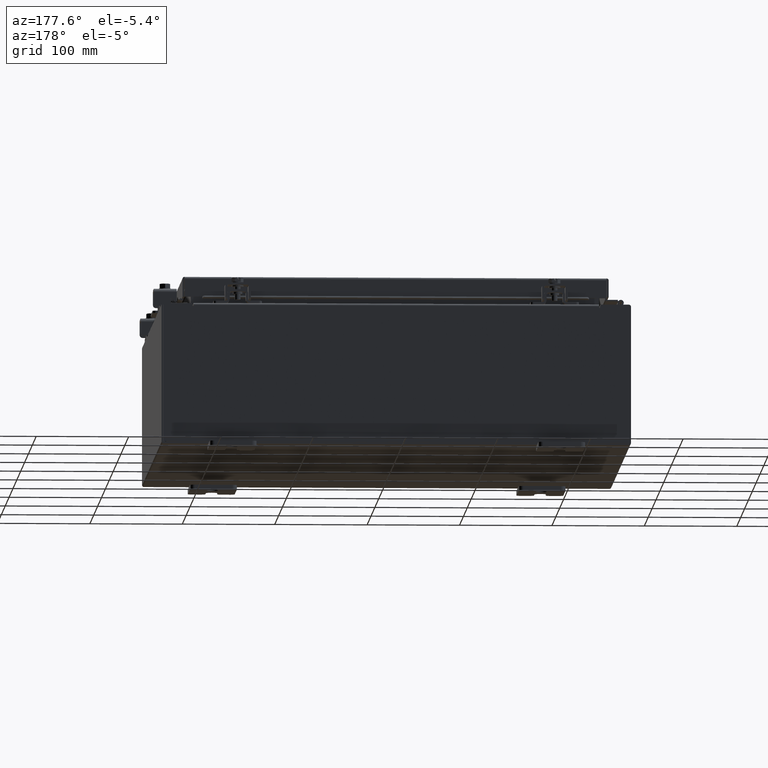
[diagram: clean part render]
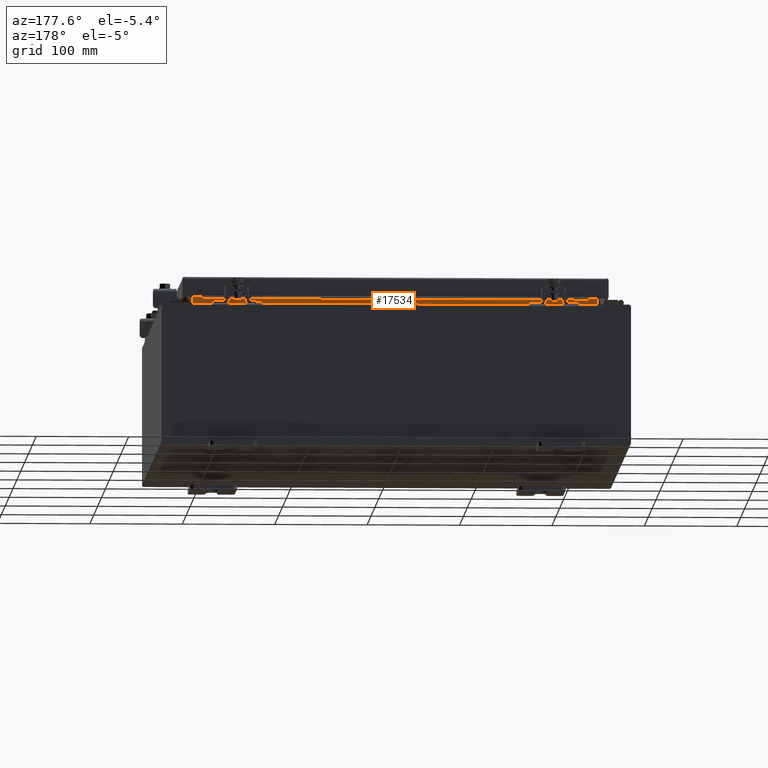
[diagram: same view with one face highlighted and labeled with its STEP entity id]
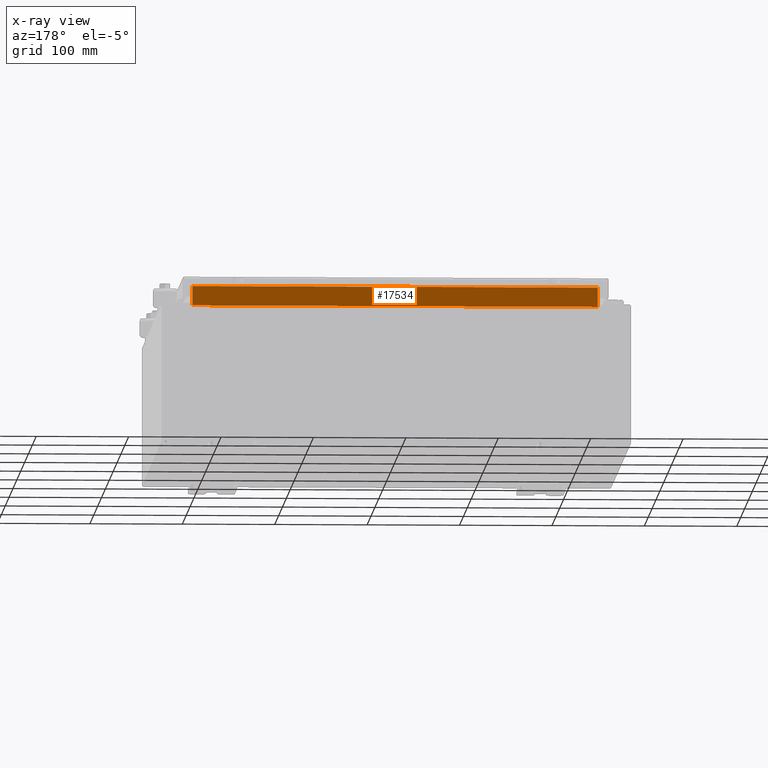
[diagram: x-ray of the same camera — body ghosted, the highlighted face saturated]
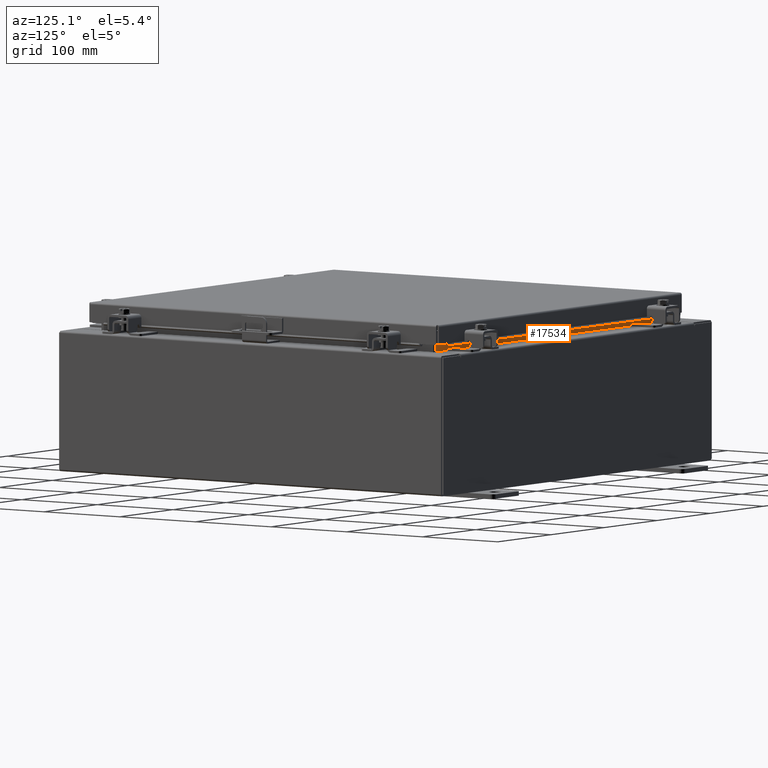
[diagram: same view with one face highlighted and labeled with its STEP entity id]
A machine part, auxiliary view. The second image highlights one B-rep face of the part: STEP entity #17534.
The next image is the same camera in x-ray: the body ghosted, the highlighted face saturated — about 0% of this face is hidden behind the body in this view.
A second angle (auxiliary view) of the same face is appended — the face is thin or edge-on in the first view.
In plain terms, the highlighted planar face has unit normal (0, 1, 0).
Its self-contained STEP definition (entity closure, byte-faithful):
#2378 = DIRECTION ( 'NONE',  ( 1.000000000000000000, 0.0000000000000000000, -6.325772226333218300E-017 ) ) ;
#2590 = CARTESIAN_POINT ( 'NONE',  ( -8.637200000000000000, -1.300299999999999800, 3.013000000000004800 ) ) ;
#6455 = ORIENTED_EDGE ( 'NONE', *, *, #25271, .F. ) ;
#7422 = AXIS2_PLACEMENT_3D ( 'NONE', #15618, #22468, #8875 ) ;
#8375 = VECTOR ( 'NONE', #11994, 39.37007874015748100 ) ;
#8695 = VERTEX_POINT ( 'NONE', #2590 ) ;
#8750 = FACE_OUTER_BOUND ( 'NONE', #27565, .T. ) ;
#8841 = CARTESIAN_POINT ( 'NONE',  ( 8.637200000000000000, -1.300299999999999800, 3.925300000000005300 ) ) ;
#8875 = DIRECTION ( 'NONE',  ( 0.0000000000000000000, -0.0000000000000000000, 1.000000000000000000 ) ) ;
#8880 = CARTESIAN_POINT ( 'NONE',  ( -8.637200000000000000, -1.300300000000000000, 3.837600000000005000 ) ) ;
#9932 = CARTESIAN_POINT ( 'NONE',  ( 8.637200000000000000, -1.300300000000000000, 3.837600000000005000 ) ) ;
#11052 = PLANE ( 'NONE',  #7422 ) ;
#11994 = DIRECTION ( 'NONE',  ( -1.000000000000000000, -0.0000000000000000000, -0.0000000000000000000 ) ) ;
#12302 = ORIENTED_EDGE ( 'NONE', *, *, #19944, .F. ) ;
#12692 = ORIENTED_EDGE ( 'NONE', *, *, #13147, .F. ) ;
#12706 = VERTEX_POINT ( 'NONE', #16058 ) ;
#13147 = EDGE_CURVE ( 'NONE', #19381, #8695, #23149, .T. ) ;
#13235 = CARTESIAN_POINT ( 'NONE',  ( -8.637200000000000000, -1.300299999999999800, 3.000000000000005300 ) ) ;
#15618 = CARTESIAN_POINT ( 'NONE',  ( 0.0000000000000000000, -1.300299999999999800, 0.0000000000000000000 ) ) ;
#15750 = VECTOR ( 'NONE', #22439, 39.37007874015748100 ) ;
#16058 = CARTESIAN_POINT ( 'NONE',  ( 8.637200000000000000, -1.300299999999999800, 3.837600000000005000 ) ) ;
#17111 = VECTOR ( 'NONE', #29169, 39.37007874015748100 ) ;
#17182 = LINE ( 'NONE', #8841, #15750 ) ;
#17534 = ADVANCED_FACE ( 'NONE', ( #8750 ), #11052, .T. ) ;
#19381 = VERTEX_POINT ( 'NONE', #8880 ) ;
#19382 = VERTEX_POINT ( 'NONE', #27043 ) ;
#19597 = LINE ( 'NONE', #27347, #25613 ) ;
#19944 = EDGE_CURVE ( 'NONE', #19382, #12706, #17182, .T. ) ;
#20929 = EDGE_CURVE ( 'NONE', #8695, #19382, #19597, .T. ) ;
#22439 = DIRECTION ( 'NONE',  ( -0.0000000000000000000, -0.0000000000000000000, 1.000000000000000000 ) ) ;
#22468 = DIRECTION ( 'NONE',  ( 0.0000000000000000000, 1.000000000000000000, 0.0000000000000000000 ) ) ;
#23149 = LINE ( 'NONE', #13235, #17111 ) ;
#25061 = LINE ( 'NONE', #9932, #8375 ) ;
#25271 = EDGE_CURVE ( 'NONE', #12706, #19381, #25061, .T. ) ;
#25540 = ORIENTED_EDGE ( 'NONE', *, *, #20929, .F. ) ;
#25613 = VECTOR ( 'NONE', #2378, 39.37007874015748100 ) ;
#27043 = CARTESIAN_POINT ( 'NONE',  ( 8.637199999999996400, -1.300299999999999800, 3.013000000000004800 ) ) ;
#27347 = CARTESIAN_POINT ( 'NONE',  ( -8.637200000000000000, -1.300299999999999800, 3.013000000000005200 ) ) ;
#27565 = EDGE_LOOP ( 'NONE', ( #12692, #6455, #12302, #25540 ) ) ;
#29169 = DIRECTION ( 'NONE',  ( -0.0000000000000000000, -0.0000000000000000000, -1.000000000000000000 ) ) ;